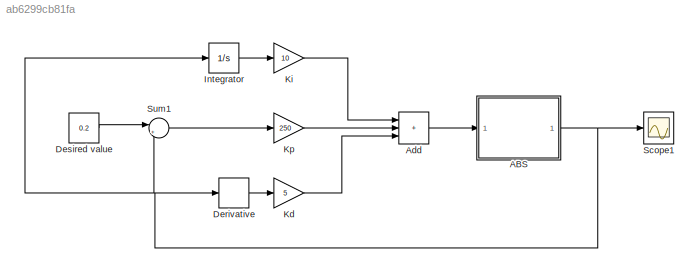
MODEL slx_ab6299cb81fa
KIND model
CONFIG AbsTol = auto
CONFIG EnableMultiTasking = off
CONFIG FixedStep = 0.001
CONFIG MaxStep = auto
CONFIG MinStep = auto
CONFIG RelTol = 1e-3
CONFIG SampleTimeConstraint = Unconstrained
CONFIG SolverName = ode45
CONFIG StartTime = 0.0
CONFIG StopTime = 50
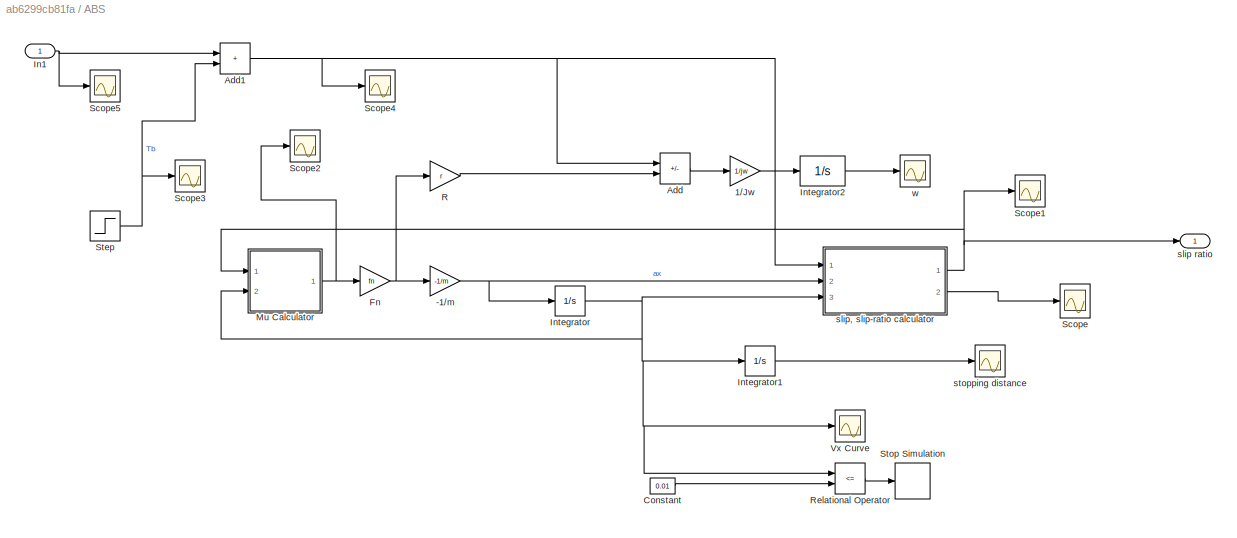
BLOCK [SubSystem] ABS
  Ports = [1, 1]
  RequestExecContextInheritance = off
BLOCK [Gain] ABS/-1//m
  Gain = -1/m
BLOCK [Gain] ABS/1//Jw
  Gain = 1/jw
BLOCK [Sum] ABS/Add
  IconShape = rectangular
  Inputs = -+
  Ports = [2, 1]
BLOCK [Sum] ABS/Add1
  IconShape = rectangular
  Ports = [2, 1]
BLOCK [Constant] ABS/Constant
  Value = 0.01
BLOCK [Gain] ABS/Fn
  Gain = fn
BLOCK [Inport] ABS/In1
BLOCK [Integrator] ABS/Integrator
  InitialCondition = 27.78
  LimitOutput = on
  LowerSaturationLimit = 0
  Ports = [1, 1]
  UpperSaturationLimit = 27.78
BLOCK [Integrator] ABS/Integrator1
  LowerSaturationLimit = 0
  Ports = [1, 1]
BLOCK [Integrator] ABS/Integrator2
  InitialCondition = 84.18
  LimitOutput = on
  LowerSaturationLimit = 0
  Ports = [1, 1]
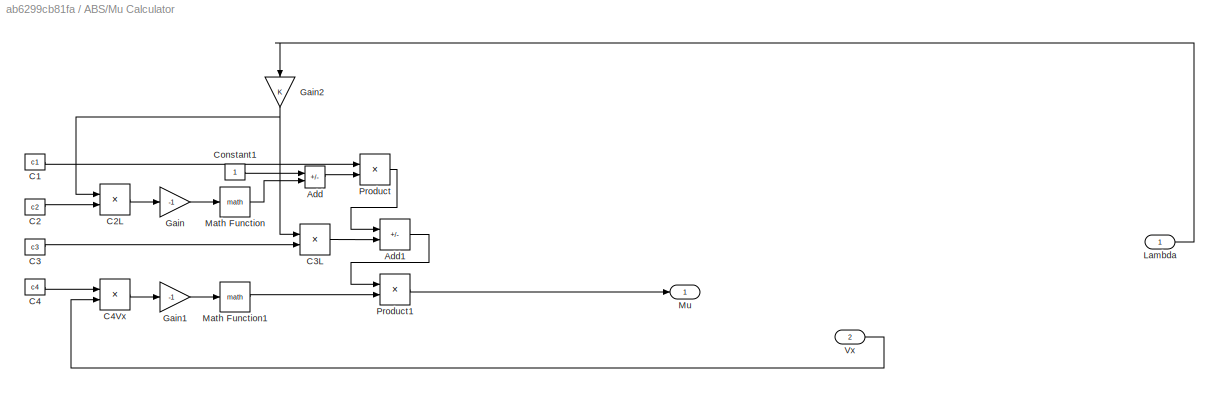
BLOCK [SubSystem] ABS/Mu Calculator
  Ports = [2, 1]
  RequestExecContextInheritance = off
BLOCK [Sum] ABS/Mu Calculator/Add
  IconShape = rectangular
  Inputs = +-
  Ports = [2, 1]
BLOCK [Sum] ABS/Mu Calculator/Add1
  IconShape = rectangular
  Inputs = +-
  Ports = [2, 1]
BLOCK [Constant] ABS/Mu Calculator/C1
  Value = c1
BLOCK [Constant] ABS/Mu Calculator/C2
  Value = c2
BLOCK [Product] ABS/Mu Calculator/C2L
  Ports = [2, 1]
BLOCK [Constant] ABS/Mu Calculator/C3
  Value = c3
BLOCK [Product] ABS/Mu Calculator/C3L
  Ports = [2, 1]
BLOCK [Constant] ABS/Mu Calculator/C4
  Value = c4
BLOCK [Product] ABS/Mu Calculator/C4Vx
  Ports = [2, 1]
BLOCK [Constant] ABS/Mu Calculator/Constant1
BLOCK [Gain] ABS/Mu Calculator/Gain
  Gain = -1
BLOCK [Gain] ABS/Mu Calculator/Gain1
  Gain = -1
BLOCK [Gain] ABS/Mu Calculator/Gain2
  NameLocation = left
BLOCK [Inport] ABS/Mu Calculator/Lambda
BLOCK [Math] ABS/Mu Calculator/Math Function
  Ports = [1, 1]
BLOCK [Math] ABS/Mu Calculator/Math Function1
  Ports = [1, 1]
BLOCK [Outport] ABS/Mu Calculator/Mu
BLOCK [Product] ABS/Mu Calculator/Product
  Ports = [2, 1]
BLOCK [Product] ABS/Mu Calculator/Product1
  Ports = [2, 1]
BLOCK [Inport] ABS/Mu Calculator/Vx
  Port = 2
BLOCK [Gain] ABS/R
  Gain = r
BLOCK [RelationalOperator] ABS/Relational Operator
  InputSameDT = off
  Operator = <=
  OutDataTypeStr = boolean
  Ports = [2, 1]
  RndMeth = Simplest
BLOCK [Scope] ABS/Scope
  Floating = off
  NumInputPorts = 1
  Ports = [1]
  ScopeSpecificationString = Simulink.scopes.TimeScopeBlockCfg('CurrentConfiguration', extmgr.ConfigurationSet(extmgr.Configuration('Core','General UI',true),extmgr.Configuration('Core','Source UI',true),extmgr.Configuration('Sources','WiredSimulink',true,'DataLoggingVariableName','ScopeData3'),extmgr.Configuration('Visuals','Time Domain',true,'SerializedDisplays',{struct('MinYLimReal','-0.91977','MaxYLimReal','15.51058','YLa...<+1515ch>
BLOCK [Scope] ABS/Scope1
  Floating = off
  NumInputPorts = 1
  Ports = [1]
  ScopeSpecificationString = Simulink.scopes.TimeScopeBlockCfg('CurrentConfiguration', extmgr.ConfigurationSet(extmgr.Configuration('Core','General UI',true),extmgr.Configuration('Core','Source UI',true),extmgr.Configuration('Sources','WiredSimulink',true,'DataLoggingVariableName','ScopeData1'),extmgr.Configuration('Visuals','Time Domain',true,'SerializedDisplays',{struct('MinYLimReal','-5.66612','MaxYLimReal','50.99506','YLa...<+1461ch>
BLOCK [Scope] ABS/Scope2
  Floating = off
  NumInputPorts = 1
  Ports = [1]
  ScopeSpecificationString = Simulink.scopes.TimeScopeBlockCfg('CurrentConfiguration', extmgr.ConfigurationSet(extmgr.Configuration('Core','General UI',true),extmgr.Configuration('Core','Source UI',true),extmgr.Configuration('Sources','WiredSimulink',true,'DataLoggingVariableName','ScopeData1'),extmgr.Configuration('Visuals','Time Domain',true,'SerializedDisplays',{struct('MinYLimReal','-10.96091','MaxYLimReal','1.77857','YLa...<+1499ch>
BLOCK [Scope] ABS/Scope3
  Floating = off
  NumInputPorts = 1
  Ports = [1]
  ScopeSpecificationString = Simulink.scopes.TimeScopeBlockCfg('CurrentConfiguration', extmgr.ConfigurationSet(extmgr.Configuration('Core','General UI',true),extmgr.Configuration('Core','Source UI',true),extmgr.Configuration('Sources','WiredSimulink',true,'DataLoggingVariableName','ScopeData2'),extmgr.Configuration('Visuals','Time Domain',true,'SerializedDisplays',{struct('MinYLimReal','200.00000','MaxYLimReal','2200.00000','...<+1448ch>
BLOCK [Scope] ABS/Scope4
  Floating = off
  NumInputPorts = 1
  Ports = [1]
  ScopeSpecificationString = Simulink.scopes.TimeScopeBlockCfg('CurrentConfiguration', extmgr.ConfigurationSet(extmgr.Configuration('Core','General UI',true),extmgr.Configuration('Core','Source UI',true),extmgr.Configuration('Sources','WiredSimulink',true,'DataLoggingVariableName','ScopeData3'),extmgr.Configuration('Visuals','Time Domain',true,'SerializedDisplays',{struct('MinYLimReal','961.87809','MaxYLimReal','1358.96345','...<+1450ch>
BLOCK [Scope] ABS/Scope5
  Floating = off
  NumInputPorts = 1
  Ports = [1]
  ScopeSpecificationString = Simulink.scopes.TimeScopeBlockCfg('CurrentConfiguration', extmgr.ConfigurationSet(extmgr.Configuration('Core','General UI',true),extmgr.Configuration('Core','Source UI',true),extmgr.Configuration('Sources','WiredSimulink',true,'DataLoggingVariableName','ScopeData4'),extmgr.Configuration('Visuals','Time Domain',true,'SerializedDisplays',{struct('MinYLimReal','-233.29233','MaxYLimReal','107.84831','...<+1478ch>
BLOCK [Step] ABS/Step
  After = 1200
  SampleTime = 0
  Time = 0
BLOCK [Stop] ABS/Stop Simulation
BLOCK [Scope] ABS/Vx Curve
  Floating = off
  NumInputPorts = 1
  Ports = [1]
  ScopeSpecificationString = Simulink.scopes.TimeScopeBlockCfg('CurrentConfiguration', extmgr.ConfigurationSet(extmgr.Configuration('Core','General UI',true),extmgr.Configuration('Core','Source UI',true),extmgr.Configuration('Sources','WiredSimulink',true,'DataLoggingVariableName','ScopeData1'),extmgr.Configuration('Visuals','Time Domain',true,'SerializedDisplays',{struct('MinYLimReal','10.58281','MaxYLimReal','174.09103','YL...<+1502ch>
BLOCK [Outport] ABS/slip ratio
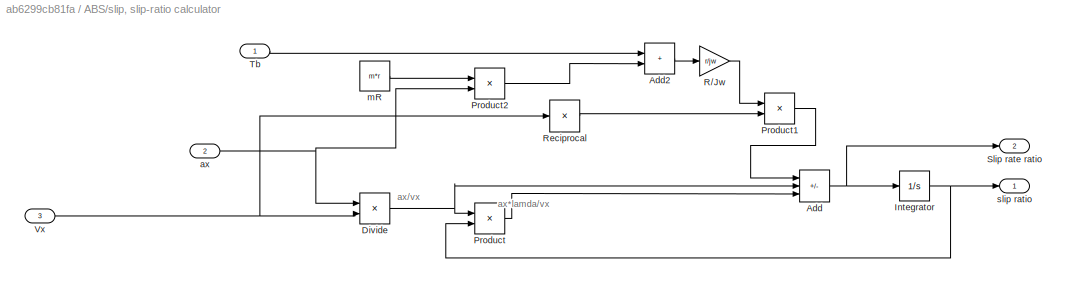
BLOCK [SubSystem] ABS/slip, slip-ratio calculator
  Ports = [3, 2]
  RequestExecContextInheritance = off
  ShowPortLabels = FromPortBlockName
BLOCK [Sum] ABS/slip, slip-ratio calculator/Add
  IconShape = rectangular
  Inputs = ++-
  Ports = [3, 1]
BLOCK [Sum] ABS/slip, slip-ratio calculator/Add2
  IconShape = rectangular
  Ports = [2, 1]
BLOCK [Product] ABS/slip, slip-ratio calculator/Divide
  Inputs = */
  Ports = [2, 1]
BLOCK [Integrator] ABS/slip, slip-ratio calculator/Integrator
  LowerSaturationLimit = 0
  Ports = [1, 1]
  UpperSaturationLimit = 1
BLOCK [Product] ABS/slip, slip-ratio calculator/Product
  Ports = [2, 1]
BLOCK [Product] ABS/slip, slip-ratio calculator/Product1
  Ports = [2, 1]
BLOCK [Product] ABS/slip, slip-ratio calculator/Product2
  Ports = [2, 1]
BLOCK [Gain] ABS/slip, slip-ratio calculator/R//Jw
  Gain = r/jw
BLOCK [Product] ABS/slip, slip-ratio calculator/Reciprocal
  Inputs = /
  Ports = [1, 1]
BLOCK [Outport] ABS/slip, slip-ratio calculator/Slip rate ratio
  Port = 2
BLOCK [Inport] ABS/slip, slip-ratio calculator/Tb
BLOCK [Inport] ABS/slip, slip-ratio calculator/Vx
  Port = 3
BLOCK [Inport] ABS/slip, slip-ratio calculator/ax
  Port = 2
BLOCK [Constant] ABS/slip, slip-ratio calculator/mR
  Value = m*r
BLOCK [Outport] ABS/slip, slip-ratio calculator/slip ratio
BLOCK [Scope] ABS/stopping distance
  Floating = off
  NumInputPorts = 1
  Ports = [1]
  ScopeSpecificationString = Simulink.scopes.TimeScopeBlockCfg('CurrentConfiguration', extmgr.ConfigurationSet(extmgr.Configuration('Core','General UI',true),extmgr.Configuration('Core','Source UI',true),extmgr.Configuration('Sources','WiredSimulink',true),extmgr.Configuration('Visuals','Time Domain',true,'SerializedDisplays',{struct('MinYLimReal','-173.57384','MaxYLimReal','1562.16459','YLabelReal','','MinYLimMag',' 0.00000'...<+1498ch>
BLOCK [Scope] ABS/w
  Floating = off
  NumInputPorts = 1
  Ports = [1]
  ScopeSpecificationString = Simulink.scopes.TimeScopeBlockCfg('CurrentConfiguration', extmgr.ConfigurationSet(extmgr.Configuration('Core','General UI',true),extmgr.Configuration('Core','Source UI',true),extmgr.Configuration('Sources','WiredSimulink',true,'DataLoggingVariableName','ScopeData2'),extmgr.Configuration('Visuals','Time Domain',true,'SerializedDisplays',{struct('MinYLimReal','-10.5225','MaxYLimReal','94.7025','YLab...<+1519ch>
BLOCK [Sum] Add
  IconShape = rectangular
  Inputs = +++
  Ports = [3, 1]
BLOCK [Derivative] Derivative
BLOCK [Constant] Desired value
  Value = 0.2
BLOCK [Integrator] Integrator
  Ports = [1, 1]
BLOCK [Gain] Kd
  Gain = 5
BLOCK [Gain] Ki
  Gain = 10
BLOCK [Gain] Kp
  Gain = 250
BLOCK [Scope] Scope1
  Floating = off
  NumInputPorts = 1
  Ports = [1]
  ScopeSpecificationString = Simulink.scopes.TimeScopeBlockCfg('CurrentConfiguration', extmgr.ConfigurationSet(extmgr.Configuration('Core','General UI',true),extmgr.Configuration('Core','Source UI',true),extmgr.Configuration('Sources','WiredSimulink',true,'DataLoggingVariableName','ScopeData4'),extmgr.Configuration('Visuals','Time Domain',true,'SerializedDisplays',{struct('MinYLimReal','-0.125','MaxYLimReal','1.125','YLabelRe...<+1429ch>
BLOCK [Sum] Sum1
  Inputs = |+-
  Ports = [2, 1]
ANNOTATION ABS/slip, slip-ratio calculator: ax*lamda/vx
ANNOTATION ABS/slip, slip-ratio calculator: ax/vx
NET ABS/-1//m:1 -> ABS/Integrator:1, ABS/slip, slip-ratio calculator:2
LINE ABS/1//Jw:1 -> ABS/Integrator2:1
NET ABS/Add1:1 -> ABS/Add:1, ABS/Scope4:1, ABS/slip, slip-ratio calculator:1
LINE ABS/Add:1 -> ABS/1//Jw:1
LINE ABS/Constant:1 -> ABS/Relational Operator:2
NET ABS/Fn:1 -> ABS/-1//m:1, ABS/R:1
NET ABS/In1:1 -> ABS/Add1:1, ABS/Scope5:1
LINE ABS/Integrator1:1 -> ABS/stopping distance:1
LINE ABS/Integrator2:1 -> ABS/w:1
NET ABS/Integrator:1 -> ABS/Integrator1:1, ABS/Mu Calculator:2, ABS/Relational Operator:1, ABS/Vx Curve:1, ABS/slip, slip-ratio calculator:3
LINE ABS/Mu Calculator/Add1:1 -> ABS/Mu Calculator/Product1:1
LINE ABS/Mu Calculator/Add:1 -> ABS/Mu Calculator/Product:2
LINE ABS/Mu Calculator/C1:1 -> ABS/Mu Calculator/Product:1
LINE ABS/Mu Calculator/C2:1 -> ABS/Mu Calculator/C2L:2
LINE ABS/Mu Calculator/C2L:1 -> ABS/Mu Calculator/Gain:1
LINE ABS/Mu Calculator/C3:1 -> ABS/Mu Calculator/C3L:2
LINE ABS/Mu Calculator/C3L:1 -> ABS/Mu Calculator/Add1:2
LINE ABS/Mu Calculator/C4:1 -> ABS/Mu Calculator/C4Vx:1
LINE ABS/Mu Calculator/C4Vx:1 -> ABS/Mu Calculator/Gain1:1
LINE ABS/Mu Calculator/Constant1:1 -> ABS/Mu Calculator/Add:1
LINE ABS/Mu Calculator/Gain1:1 -> ABS/Mu Calculator/Math Function1:1
NET ABS/Mu Calculator/Gain2:1 -> ABS/Mu Calculator/C2L:1, ABS/Mu Calculator/C3L:1
LINE ABS/Mu Calculator/Gain:1 -> ABS/Mu Calculator/Math Function:1
LINE ABS/Mu Calculator/Lambda:1 -> ABS/Mu Calculator/Gain2:1
LINE ABS/Mu Calculator/Math Function1:1 -> ABS/Mu Calculator/Product1:2
LINE ABS/Mu Calculator/Math Function:1 -> ABS/Mu Calculator/Add:2
LINE ABS/Mu Calculator/Product1:1 -> ABS/Mu Calculator/Mu:1
LINE ABS/Mu Calculator/Product:1 -> ABS/Mu Calculator/Add1:1
LINE ABS/Mu Calculator/Vx:1 -> ABS/Mu Calculator/C4Vx:2
NET ABS/Mu Calculator:1 -> ABS/Fn:1, ABS/Scope2:1
LINE ABS/R:1 -> ABS/Add:2
LINE ABS/Relational Operator:1 -> ABS/Stop Simulation:1
NET ABS/Step:1 -> ABS/Add1:2, ABS/Scope3:1
LINE ABS/slip, slip-ratio calculator/Add2:1 -> ABS/slip, slip-ratio calculator/R//Jw:1
NET ABS/slip, slip-ratio calculator/Add:1 -> ABS/slip, slip-ratio calculator/Integrator:1, ABS/slip, slip-ratio calculator/Slip rate ratio:1
NET ABS/slip, slip-ratio calculator/Divide:1 -> ABS/slip, slip-ratio calculator/Add:2, ABS/slip, slip-ratio calculator/Product:1
NET ABS/slip, slip-ratio calculator/Integrator:1 -> ABS/slip, slip-ratio calculator/Product:2, ABS/slip, slip-ratio calculator/slip ratio:1
LINE ABS/slip, slip-ratio calculator/Product1:1 -> ABS/slip, slip-ratio calculator/Add:1
LINE ABS/slip, slip-ratio calculator/Product2:1 -> ABS/slip, slip-ratio calculator/Add2:2
LINE ABS/slip, slip-ratio calculator/Product:1 -> ABS/slip, slip-ratio calculator/Add:3
LINE ABS/slip, slip-ratio calculator/R//Jw:1 -> ABS/slip, slip-ratio calculator/Product1:1
LINE ABS/slip, slip-ratio calculator/Reciprocal:1 -> ABS/slip, slip-ratio calculator/Product1:2
LINE ABS/slip, slip-ratio calculator/Tb:1 -> ABS/slip, slip-ratio calculator/Add2:1
NET ABS/slip, slip-ratio calculator/Vx:1 -> ABS/slip, slip-ratio calculator/Divide:2, ABS/slip, slip-ratio calculator/Reciprocal:1
NET ABS/slip, slip-ratio calculator/ax:1 -> ABS/slip, slip-ratio calculator/Divide:1, ABS/slip, slip-ratio calculator/Product2:2
LINE ABS/slip, slip-ratio calculator/mR:1 -> ABS/slip, slip-ratio calculator/Product2:1
NET ABS/slip, slip-ratio calculator:1 -> ABS/Mu Calculator:1, ABS/Scope1:1, ABS/slip ratio:1
LINE ABS/slip, slip-ratio calculator:2 -> ABS/Scope:1
NET ABS:1 -> Derivative:1, Integrator:1, Scope1:1, Sum1:2
LINE Add:1 -> ABS:1
LINE Derivative:1 -> Kd:1
LINE Desired value:1 -> Sum1:1
LINE Integrator:1 -> Ki:1
LINE Kd:1 -> Add:3
LINE Ki:1 -> Add:1
LINE Kp:1 -> Add:2
LINE Sum1:1 -> Kp:1
note: NET lines group one-source signal fan-out (src -> all destinations, sorted); 1:1 wires keep LINE
